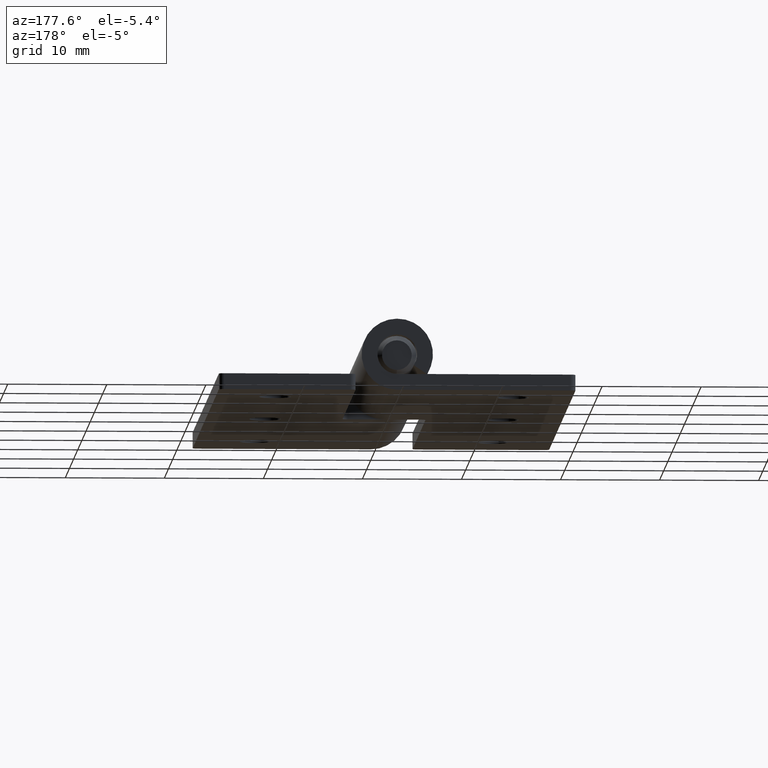
[diagram: clean part render]
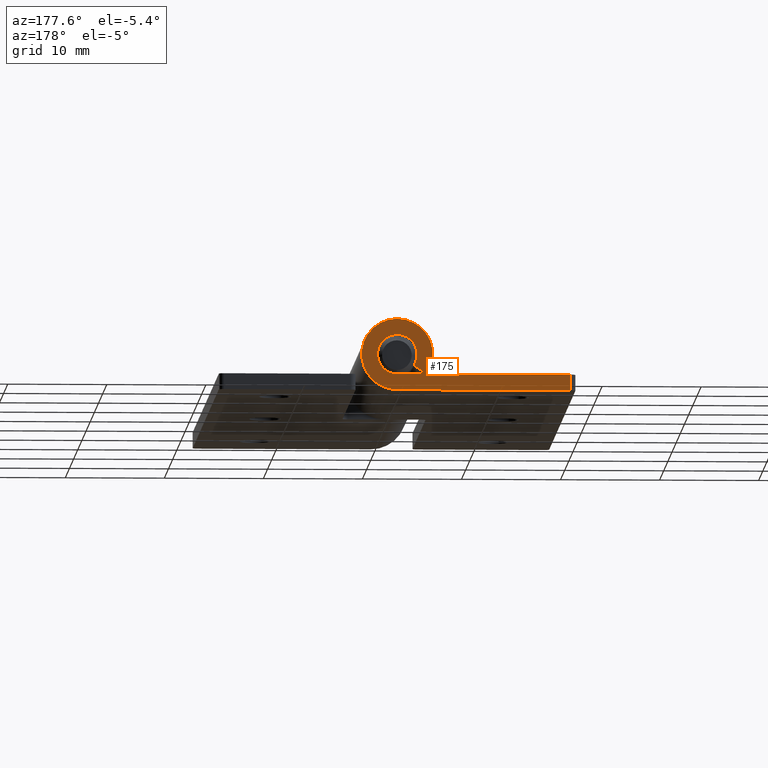
[diagram: same view with one face highlighted and labeled with its STEP entity id]
A machine part, auxiliary view. The second image highlights one B-rep face of the part: STEP entity #175.
In plain terms, the highlighted planar face has unit normal (0, 1, 0).
Its self-contained STEP definition (entity closure, byte-faithful):
#175=ADVANCED_FACE('',(#468),#467,.T.);
#467=PLANE('',#812);
#468=FACE_OUTER_BOUND('',#813,.T.);
#809=CARTESIAN_POINT('',(-1.96883985290E+01,6.40000000000E+01,-4.46005002209E+00));
#810=DIRECTION('',(-0.00000000000E+00,1.00000000000E+00,0.00000000000E+00));
#811=DIRECTION('',(0.00000000000E+00,0.00000000000E+00,1.00000000000E+00));
#812=AXIS2_PLACEMENT_3D('',#809,#810,#811);
#813=EDGE_LOOP('',(#1077,#1078,#1079,#1080,#1081,#1082));
#1077=ORIENTED_EDGE('',*,*,#1251,.T.);
#1078=ORIENTED_EDGE('',*,*,#1219,.F.);
#1079=ORIENTED_EDGE('',*,*,#1235,.T.);
#1080=ORIENTED_EDGE('',*,*,#1252,.F.);
#1081=ORIENTED_EDGE('',*,*,#1253,.F.);
#1082=ORIENTED_EDGE('',*,*,#1240,.F.);
#1219=EDGE_CURVE('',#1685,#1692,#1693,.T.);
#1235=EDGE_CURVE('',#1685,#1794,#1801,.T.);
#1240=EDGE_CURVE('',#1826,#1833,#1834,.T.);
#1251=EDGE_CURVE('',#1826,#1692,#1909,.T.);
#1252=EDGE_CURVE('',#1915,#1794,#1916,.T.);
#1253=EDGE_CURVE('',#1833,#1915,#1922,.T.);
#1685=VERTEX_POINT('',#2309);
#1692=VERTEX_POINT('',#2313);
#1693=LINE('',#2314,#2315);
#1794=VERTEX_POINT('',#2380);
#1801=CIRCLE('',#2387,2.00000000000E+00);
#1826=VERTEX_POINT('',#2398);
#1833=VERTEX_POINT('',#2403);
#1834=LINE('',#2404,#2405);
#1909=LINE('',#2453,#2454);
#1915=VERTEX_POINT('',#2456);
#1916=LINE('',#2457,#2458);
#1922=CIRCLE('',#2463,3.60000000000E+00);
#2309=CARTESIAN_POINT('',(1.22464679915E-16,6.40000000000E+01,-2.00000000000E+00));
#2313=CARTESIAN_POINT('',(-1.75000000000E+01,6.40000000000E+01,-2.00000000000E+00));
#2314=CARTESIAN_POINT('',(1.22464679915E-16,6.40000000000E+01,-2.00000000000E+00));
#2315=VECTOR('',#2316,1.75000000000E+01);
#2316=DIRECTION('',(-1.00000000000E+00,0.00000000000E+00,0.00000000000E+00));
#2380=CARTESIAN_POINT('',(-1.66489555948E+00,6.40000000000E+01,-1.10820700956E+00));
#2384=CARTESIAN_POINT('',(0.00000000000E+00,6.40000000000E+01,0.00000000000E+00));
#2385=DIRECTION('',(0.00000000000E+00,-1.00000000000E+00,0.00000000000E+00));
#2386=DIRECTION('',(-0.00000000000E+00,-0.00000000000E+00,-1.00000000000E+00));
#2387=AXIS2_PLACEMENT_3D('',#2384,#2385,#2386);
#2398=CARTESIAN_POINT('',(-1.75000000000E+01,6.40000000000E+01,-3.60000000000E+00));
#2403=CARTESIAN_POINT('',(0.00000000000E+00,6.40000000000E+01,-3.60000000000E+00));
#2404=CARTESIAN_POINT('',(-1.75000000000E+01,6.40000000000E+01,-3.60000000000E+00));
#2405=VECTOR('',#2406,1.75000000000E+01);
#2406=DIRECTION('',(1.00000000000E+00,0.00000000000E+00,0.00000000000E+00));
#2453=CARTESIAN_POINT('',(-1.75000000000E+01,6.40000000000E+01,-3.60000000000E+00));
#2454=VECTOR('',#2455,1.60000000000E+00);
#2455=DIRECTION('',(0.00000000000E+00,0.00000000000E+00,1.00000000000E+00));
#2456=CARTESIAN_POINT('',(-2.99681200706E+00,6.40000000000E+01,-1.99477261721E+00));
#2457=CARTESIAN_POINT('',(-2.99681200706E+00,6.40000000000E+01,-1.99477261721E+00));
#2458=VECTOR('',#2459,1.60000000000E+00);
#2459=DIRECTION('',(8.32447779738E-01,0.00000000000E+00,5.54103504780E-01));
#2460=CARTESIAN_POINT('',(0.00000000000E+00,6.40000000000E+01,0.00000000000E+00));
#2461=DIRECTION('',(0.00000000000E+00,-1.00000000000E+00,0.00000000000E+00));
#2462=DIRECTION('',(-0.00000000000E+00,-0.00000000000E+00,-1.00000000000E+00));
#2463=AXIS2_PLACEMENT_3D('',#2460,#2461,#2462);